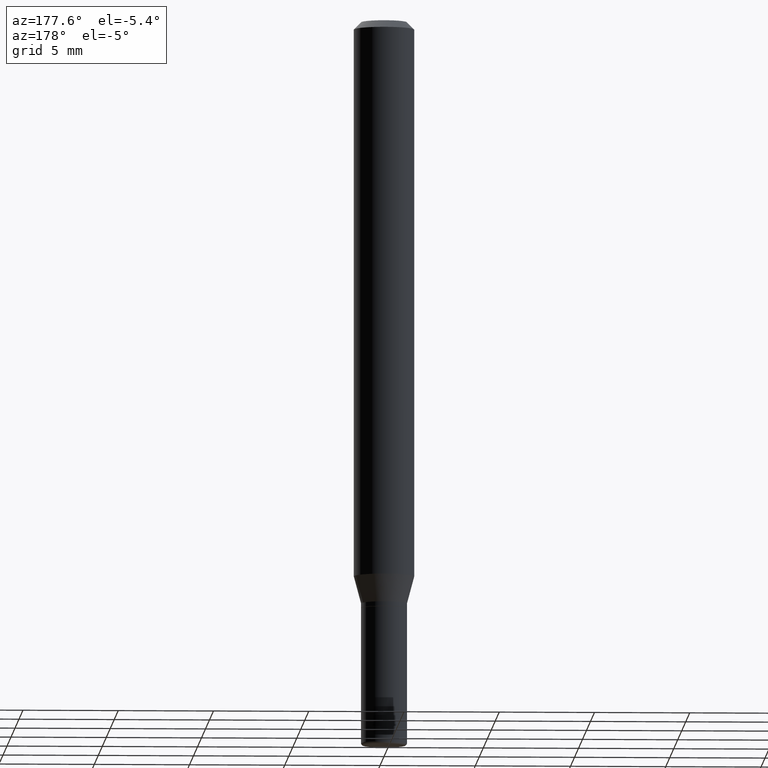
[diagram: clean part render]
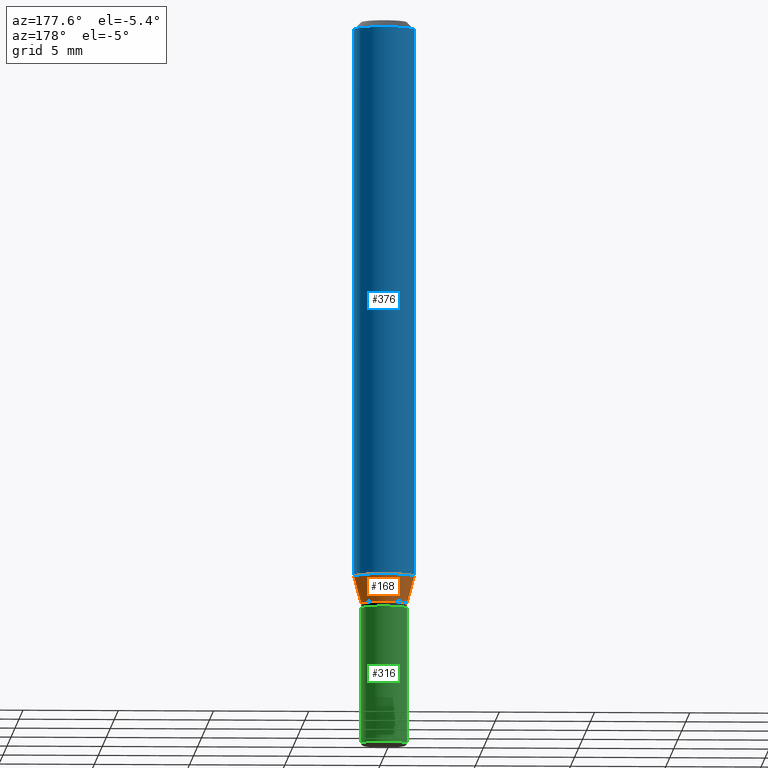
[diagram: same view with three faces highlighted in distinct colors, each labeled with its STEP entity id]
A machine part, auxiliary view with three faces highlighted in distinct colors.
Their STEP definitions:

[orange] entity #168 — the highlighted conical surface has half-angle 15 deg.
#4 = FACE_OUTER_BOUND ( 'NONE', #27, .T. ) ;
#17 = AXIS2_PLACEMENT_3D ( 'NONE', #315, #473, #123 ) ;
#27 = EDGE_LOOP ( 'NONE', ( #460, #197, #382, #261 ) ) ;
#84 = EDGE_CURVE ( 'NONE', #463, #192, #461, .T. ) ;
#86 = CARTESIAN_POINT ( 'NONE',  ( -0.06250000000000000000, -3.567690017202308146E-15, -1.149019237886466538 ) ) ;
#90 = DIRECTION ( 'NONE',  ( -2.445468806185136597E-29, 3.491481338843145583E-15, 1.000000000000000000 ) ) ;
#98 = VERTEX_POINT ( 'NONE', #86 ) ;
#102 = DIRECTION ( 'NONE',  ( -2.445468806185136597E-29, 3.491481338843145583E-15, 1.000000000000000000 ) ) ;
#105 = CONICAL_SURFACE ( 'NONE', #274, 0.04749999999999993811, 0.2617993877991493523 ) ;
#108 = EDGE_CURVE ( 'NONE', #192, #98, #318, .T. ) ;
#114 = VECTOR ( 'NONE', #220, 39.37007874015748854 ) ;
#115 = CARTESIAN_POINT ( 'NONE',  ( -0.04749999999999993811, -3.869727213819942557E-15, -1.204999999999999849 ) ) ;
#123 = DIRECTION ( 'NONE',  ( 1.000000000000000000, -6.982962677686270655E-15, 0.000000000000000000 ) ) ;
#149 = CIRCLE ( 'NONE', #333, 0.06250000000000000000 ) ;
#161 = CARTESIAN_POINT ( 'NONE',  ( 0.06250000000000000000, -4.448214394407762432E-15, -1.149019237886466538 ) ) ;
#168 = ADVANCED_FACE ( 'NONE', ( #4 ), #105, .T. ) ;
#180 = VECTOR ( 'NONE', #271, 39.37007874015748854 ) ;
#182 = VERTEX_POINT ( 'NONE', #161 ) ;
#192 = VERTEX_POINT ( 'NONE', #326 ) ;
#197 = ORIENTED_EDGE ( 'NONE', *, *, #108, .T. ) ;
#220 = DIRECTION ( 'NONE',  ( 0.2588190451025206285, 1.565188264969627095E-15, 0.9659258262890682012 ) ) ;
#252 = CARTESIAN_POINT ( 'NONE',  ( 0.04749999999999993811, -4.538925740496087561E-15, -1.204999999999999849 ) ) ;
#261 = ORIENTED_EDGE ( 'NONE', *, *, #362, .F. ) ;
#271 = DIRECTION ( 'NONE',  ( -0.2588190451025206285, 5.211531920934544731E-15, 0.9659258262890682012 ) ) ;
#274 = AXIS2_PLACEMENT_3D ( 'NONE', #477, #90, #472 ) ;
#315 = CARTESIAN_POINT ( 'NONE',  ( 2.946789911453088792E-29, -4.207235013305990050E-15, -1.204999999999999849 ) ) ;
#318 = LINE ( 'NONE', #115, #180 ) ;
#326 = CARTESIAN_POINT ( 'NONE',  ( -0.04749999999999993811, -3.718708615511125351E-15, -1.204999999999999849 ) ) ;
#333 = AXIS2_PLACEMENT_3D ( 'NONE', #450, #102, #336 ) ;
#336 = DIRECTION ( 'NONE',  ( 1.000000000000000000, -6.982962677686270655E-15, 0.000000000000000000 ) ) ;
#351 = EDGE_CURVE ( 'NONE', #182, #98, #149, .T. ) ;
#362 = EDGE_CURVE ( 'NONE', #463, #182, #443, .T. ) ;
#382 = ORIENTED_EDGE ( 'NONE', *, *, #351, .F. ) ;
#410 = CARTESIAN_POINT ( 'NONE',  ( 0.04749999999999993811, -4.538925740496087561E-15, -1.204999999999999849 ) ) ;
#443 = LINE ( 'NONE', #252, #114 ) ;
#450 = CARTESIAN_POINT ( 'NONE',  ( 2.809890703957972484E-29, -4.011779227052370762E-15, -1.149019237886466538 ) ) ;
#460 = ORIENTED_EDGE ( 'NONE', *, *, #84, .T. ) ;
#461 = CIRCLE ( 'NONE', #17, 0.04749999999999993811 ) ;
#463 = VERTEX_POINT ( 'NONE', #410 ) ;
#472 = DIRECTION ( 'NONE',  ( 1.000000000000000000, -6.982962677686270655E-15, 0.000000000000000000 ) ) ;
#473 = DIRECTION ( 'NONE',  ( -2.445468806185136597E-29, 3.491481338843145583E-15, 1.000000000000000000 ) ) ;
#477 = CARTESIAN_POINT ( 'NONE',  ( 2.946789911453088792E-29, -4.207235013305990050E-15, -1.204999999999999849 ) ) ;

[blue] entity #376 — the highlighted cylindrical surface (edge-blend (fillet) strip) has radius 1.5875 mm, axis along (-0, 0, 1).
#21 = EDGE_LOOP ( 'NONE', ( #224, #34, #393, #241 ) ) ;
#34 = ORIENTED_EDGE ( 'NONE', *, *, #250, .T. ) ;
#35 = CARTESIAN_POINT ( 'NONE',  ( 0.06250000000000000000, -4.364351673553916694E-16, 3.047610484872459871E-30 ) ) ;
#40 = VERTEX_POINT ( 'NONE', #43 ) ;
#43 = CARTESIAN_POINT ( 'NONE',  ( -0.06250000000000000000, -1.587986513717445910E-15, -0.01499999999999970281 ) ) ;
#46 = CIRCLE ( 'NONE', #462, 0.06250000000000000000 ) ;
#86 = CARTESIAN_POINT ( 'NONE',  ( -0.06250000000000000000, -3.567690017202308146E-15, -1.149019237886466538 ) ) ;
#87 = EDGE_CURVE ( 'NONE', #182, #397, #280, .T. ) ;
#98 = VERTEX_POINT ( 'NONE', #86 ) ;
#102 = DIRECTION ( 'NONE',  ( -2.445468806185136597E-29, 3.491481338843145583E-15, 1.000000000000000000 ) ) ;
#109 = LINE ( 'NONE', #290, #498 ) ;
#127 = DIRECTION ( 'NONE',  ( 1.000000000000000000, -6.982962677686266711E-15, 0.000000000000000000 ) ) ;
#149 = CIRCLE ( 'NONE', #333, 0.06250000000000000000 ) ;
#161 = CARTESIAN_POINT ( 'NONE',  ( 0.06250000000000000000, -4.448214394407762432E-15, -1.149019237886466538 ) ) ;
#182 = VERTEX_POINT ( 'NONE', #161 ) ;
#224 = ORIENTED_EDGE ( 'NONE', *, *, #351, .T. ) ;
#241 = ORIENTED_EDGE ( 'NONE', *, *, #87, .F. ) ;
#250 = EDGE_CURVE ( 'NONE', #98, #40, #109, .T. ) ;
#254 = CYLINDRICAL_SURFACE ( 'NONE', #323, 0.06250000000000000000 ) ;
#258 = DIRECTION ( 'NONE',  ( -2.445468806185136597E-29, 3.491481338843145583E-15, 1.000000000000000000 ) ) ;
#280 = LINE ( 'NONE', #35, #402 ) ;
#290 = CARTESIAN_POINT ( 'NONE',  ( -0.06250000000000000000, 4.440892098500626162E-16, -3.074334431409316114E-30 ) ) ;
#296 = CARTESIAN_POINT ( 'NONE',  ( 3.668203209277632395E-31, -5.237222008264614861E-17, -0.01499999999999970281 ) ) ;
#323 = AXIS2_PLACEMENT_3D ( 'NONE', #493, #258, #373 ) ;
#330 = DIRECTION ( 'NONE',  ( -2.445468806185136597E-29, 3.491481338843145583E-15, 1.000000000000000000 ) ) ;
#333 = AXIS2_PLACEMENT_3D ( 'NONE', #450, #102, #336 ) ;
#336 = DIRECTION ( 'NONE',  ( 1.000000000000000000, -6.982962677686270655E-15, 0.000000000000000000 ) ) ;
#341 = EDGE_CURVE ( 'NONE', #397, #40, #46, .T. ) ;
#351 = EDGE_CURVE ( 'NONE', #182, #98, #149, .T. ) ;
#363 = DIRECTION ( 'NONE',  ( -2.445468806185136877E-29, 3.491481338843145188E-15, 1.000000000000000000 ) ) ;
#373 = DIRECTION ( 'NONE',  ( 1.000000000000000000, -6.982962677686266711E-15, 4.876176775795935793E-29 ) ) ;
#376 = ADVANCED_FACE ( 'NONE', ( #405 ), #254, .T. ) ;
#393 = ORIENTED_EDGE ( 'NONE', *, *, #341, .F. ) ;
#397 = VERTEX_POINT ( 'NONE', #416 ) ;
#402 = VECTOR ( 'NONE', #432, 39.37007874015748143 ) ;
#405 = FACE_OUTER_BOUND ( 'NONE', #21, .T. ) ;
#416 = CARTESIAN_POINT ( 'NONE',  ( 0.06250000000000000000, -4.888073874380378612E-16, -0.01499999999999970281 ) ) ;
#432 = DIRECTION ( 'NONE',  ( -2.445468806185136877E-29, 3.491481338843145188E-15, 1.000000000000000000 ) ) ;
#450 = CARTESIAN_POINT ( 'NONE',  ( 2.809890703957972484E-29, -4.011779227052370762E-15, -1.149019237886466538 ) ) ;
#462 = AXIS2_PLACEMENT_3D ( 'NONE', #296, #330, #127 ) ;
#493 = CARTESIAN_POINT ( 'NONE',  ( 0.000000000000000000, 0.000000000000000000, 0.000000000000000000 ) ) ;
#498 = VECTOR ( 'NONE', #363, 39.37007874015748143 ) ;

[green] entity #316 — the highlighted cylindrical surface (edge-blend (fillet) strip) has radius 1.2065 mm, axis along (-0, 0, 1).
#38 = CIRCLE ( 'NONE', #385, 0.04749999999999999362 ) ;
#52 = CARTESIAN_POINT ( 'NONE',  ( 0.04749999999999995198, -3.316907271900973631E-16, 2.316183968503067330E-30 ) ) ;
#53 = CARTESIAN_POINT ( 'NONE',  ( -0.04749999999999995198, 3.375077994860472471E-16, -2.336494167871077808E-30 ) ) ;
#54 = EDGE_CURVE ( 'NONE', #227, #408, #259, .T. ) ;
#56 = AXIS2_PLACEMENT_3D ( 'NONE', #96, #338, #212 ) ;
#61 = LINE ( 'NONE', #52, #434 ) ;
#83 = CARTESIAN_POINT ( 'NONE',  ( 0.04749999999999990341, -5.551455328760601441E-15, -1.495000000000000329 ) ) ;
#96 = CARTESIAN_POINT ( 'NONE',  ( 0.000000000000000000, 0.000000000000000000, 0.000000000000000000 ) ) ;
#144 = ORIENTED_EDGE ( 'NONE', *, *, #187, .T. ) ;
#147 = CARTESIAN_POINT ( 'NONE',  ( -0.04749999999999990341, -4.393449414646416504E-15, -1.495000000000000329 ) ) ;
#167 = DIRECTION ( 'NONE',  ( 1.000000000000000000, -6.982962677686261977E-15, 0.000000000000000000 ) ) ;
#179 = DIRECTION ( 'NONE',  ( -2.445468806185136597E-29, 3.491481338843145583E-15, 1.000000000000000000 ) ) ;
#187 = EDGE_CURVE ( 'NONE', #408, #512, #401, .T. ) ;
#203 = DIRECTION ( 'NONE',  ( -2.445468806185136877E-29, 3.491481338843145188E-15, 1.000000000000000000 ) ) ;
#212 = DIRECTION ( 'NONE',  ( 1.000000000000000000, -6.982962677686267499E-15, 4.876176775795936353E-29 ) ) ;
#227 = VERTEX_POINT ( 'NONE', #83 ) ;
#228 = EDGE_CURVE ( 'NONE', #309, #512, #38, .T. ) ;
#229 = ORIENTED_EDGE ( 'NONE', *, *, #489, .F. ) ;
#242 = AXIS2_PLACEMENT_3D ( 'NONE', #517, #390, #352 ) ;
#259 = CIRCLE ( 'NONE', #242, 0.04749999999999990341 ) ;
#264 = FACE_OUTER_BOUND ( 'NONE', #354, .T. ) ;
#283 = VECTOR ( 'NONE', #358, 39.37007874015748143 ) ;
#309 = VERTEX_POINT ( 'NONE', #375 ) ;
#316 = ADVANCED_FACE ( 'NONE', ( #264 ), #327, .T. ) ;
#327 = CYLINDRICAL_SURFACE ( 'NONE', #56, 0.04749999999999995198 ) ;
#338 = DIRECTION ( 'NONE',  ( -2.445468806185136597E-29, 3.491481338843145583E-15, 1.000000000000000000 ) ) ;
#352 = DIRECTION ( 'NONE',  ( 1.000000000000000000, -6.982962677686275388E-15, 0.000000000000000000 ) ) ;
#354 = EDGE_LOOP ( 'NONE', ( #505, #144, #452, #229 ) ) ;
#358 = DIRECTION ( 'NONE',  ( -2.445468806185136877E-29, 3.491481338843145188E-15, 1.000000000000000000 ) ) ;
#375 = CARTESIAN_POINT ( 'NONE',  ( 0.04749999999999999362, -4.573840553884519999E-15, -1.215000000000000080 ) ) ;
#385 = AXIS2_PLACEMENT_3D ( 'NONE', #412, #179, #167 ) ;
#390 = DIRECTION ( 'NONE',  ( -2.445468806185136597E-29, 3.491481338843145583E-15, 1.000000000000000000 ) ) ;
#401 = LINE ( 'NONE', #53, #283 ) ;
#408 = VERTEX_POINT ( 'NONE', #147 ) ;
#412 = CARTESIAN_POINT ( 'NONE',  ( 2.971244599514941458E-29, -4.242149826694422488E-15, -1.215000000000000080 ) ) ;
#421 = CARTESIAN_POINT ( 'NONE',  ( -0.04749999999999999362, -4.393449414646416504E-15, -1.215000000000000080 ) ) ;
#434 = VECTOR ( 'NONE', #203, 39.37007874015748143 ) ;
#452 = ORIENTED_EDGE ( 'NONE', *, *, #228, .F. ) ;
#489 = EDGE_CURVE ( 'NONE', #227, #309, #61, .T. ) ;
#505 = ORIENTED_EDGE ( 'NONE', *, *, #54, .T. ) ;
#512 = VERTEX_POINT ( 'NONE', #421 ) ;
#517 = CARTESIAN_POINT ( 'NONE',  ( 3.655975865246779683E-29, -5.219764601570503930E-15, -1.495000000000000329 ) ) ;